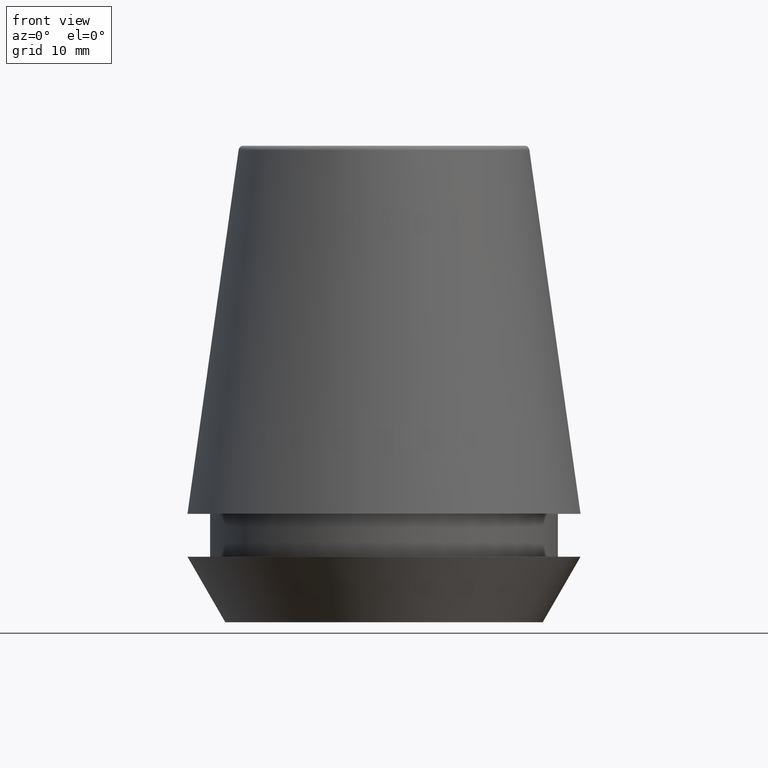
[diagram: clean part render]
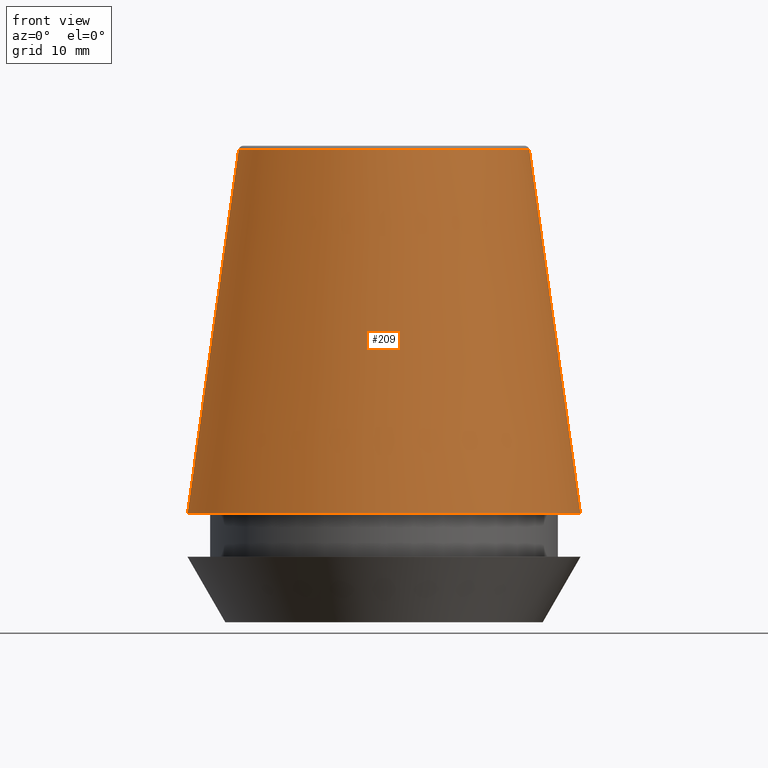
[diagram: same view with one face highlighted and labeled with its STEP entity id]
A machine part, front view. The second image highlights one B-rep face of the part: STEP entity #209.
In plain terms, the highlighted conical surface has half-angle 8 deg.
Its self-contained STEP definition (entity closure, byte-faithful):
#10 = DIRECTION ( 'NONE',  ( -1.000000000000000000, 0.0000000000000000000, 0.0000000000000000000 ) ) ;
#25 = CIRCLE ( 'NONE', #322, 12.20600611160694300 ) ;
#39 = ORIENTED_EDGE ( 'NONE', *, *, #337, .T. ) ;
#40 = CARTESIAN_POINT ( 'NONE',  ( 0.0000000000000000000, 0.0000000000000000000, 39.65566924038402900 ) ) ;
#45 = VERTEX_POINT ( 'NONE', #288 ) ;
#56 = EDGE_CURVE ( 'NONE', #157, #45, #25, .T. ) ;
#79 = EDGE_CURVE ( 'NONE', #145, #169, #331, .T. ) ;
#88 = LINE ( 'NONE', #366, #236 ) ;
#96 = ORIENTED_EDGE ( 'NONE', *, *, #79, .T. ) ;
#98 = DIRECTION ( 'NONE',  ( 0.0000000000000000000, 0.0000000000000000000, -1.000000000000000000 ) ) ;
#104 = DIRECTION ( 'NONE',  ( 0.1391731009600586900, 1.704378926181473100E-017, -0.9902680687415712500 ) ) ;
#106 = ORIENTED_EDGE ( 'NONE', *, *, #193, .F. ) ;
#125 = DIRECTION ( 'NONE',  ( -0.1391731009600586900, 0.0000000000000000000, -0.9902680687415712500 ) ) ;
#136 = EDGE_LOOP ( 'NONE', ( #106, #368, #39, #96 ) ) ;
#145 = VERTEX_POINT ( 'NONE', #325 ) ;
#157 = VERTEX_POINT ( 'NONE', #277 ) ;
#166 = DIRECTION ( 'NONE',  ( 1.000000000000000000, 0.0000000000000000000, 0.0000000000000000000 ) ) ;
#169 = VERTEX_POINT ( 'NONE', #340 ) ;
#187 = AXIS2_PLACEMENT_3D ( 'NONE', #328, #98, #10 ) ;
#193 = EDGE_CURVE ( 'NONE', #45, #169, #88, .T. ) ;
#201 = AXIS2_PLACEMENT_3D ( 'NONE', #220, #282, #347 ) ;
#209 = ADVANCED_FACE ( 'NONE', ( #305 ), #291, .T. ) ;
#212 = LINE ( 'NONE', #332, #258 ) ;
#220 = CARTESIAN_POINT ( 'NONE',  ( 0.0000000000000000000, 0.0000000000000000000, 9.099999999999997900 ) ) ;
#236 = VECTOR ( 'NONE', #104, 1000.000000000000000 ) ;
#258 = VECTOR ( 'NONE', #125, 1000.000000000000000 ) ;
#277 = CARTESIAN_POINT ( 'NONE',  ( -12.20600611160694300, 0.0000000000000000000, 39.65566924038402900 ) ) ;
#282 = DIRECTION ( 'NONE',  ( -0.0000000000000000000, -0.0000000000000000000, 1.000000000000000000 ) ) ;
#288 = CARTESIAN_POINT ( 'NONE',  ( 12.20600611160694300, 1.757755848304969800E-015, 39.65566924038402900 ) ) ;
#291 = CONICAL_SURFACE ( 'NONE', #187, 16.50032537154048700, 0.1396263401595395900 ) ;
#305 = FACE_OUTER_BOUND ( 'NONE', #136, .T. ) ;
#310 = DIRECTION ( 'NONE',  ( -0.0000000000000000000, -0.0000000000000000000, 1.000000000000000000 ) ) ;
#322 = AXIS2_PLACEMENT_3D ( 'NONE', #40, #310, #166 ) ;
#325 = CARTESIAN_POINT ( 'NONE',  ( -16.50032537154048700, 0.0000000000000000000, 9.099999999999997900 ) ) ;
#328 = CARTESIAN_POINT ( 'NONE',  ( 0.0000000000000000000, 0.0000000000000000000, 9.099999999999997900 ) ) ;
#331 = CIRCLE ( 'NONE', #201, 16.50032537154048700 ) ;
#332 = CARTESIAN_POINT ( 'NONE',  ( -16.50032537154048700, 0.0000000000000000000, 9.099999999999997900 ) ) ;
#337 = EDGE_CURVE ( 'NONE', #157, #145, #212, .T. ) ;
#340 = CARTESIAN_POINT ( 'NONE',  ( 16.50032537154048700, 2.020707065114692300E-015, 9.099999999999997900 ) ) ;
#347 = DIRECTION ( 'NONE',  ( 1.000000000000000000, 0.0000000000000000000, 0.0000000000000000000 ) ) ;
#366 = CARTESIAN_POINT ( 'NONE',  ( 16.50032537154048700, 2.020707065114692300E-015, 9.099999999999997900 ) ) ;
#368 = ORIENTED_EDGE ( 'NONE', *, *, #56, .F. ) ;